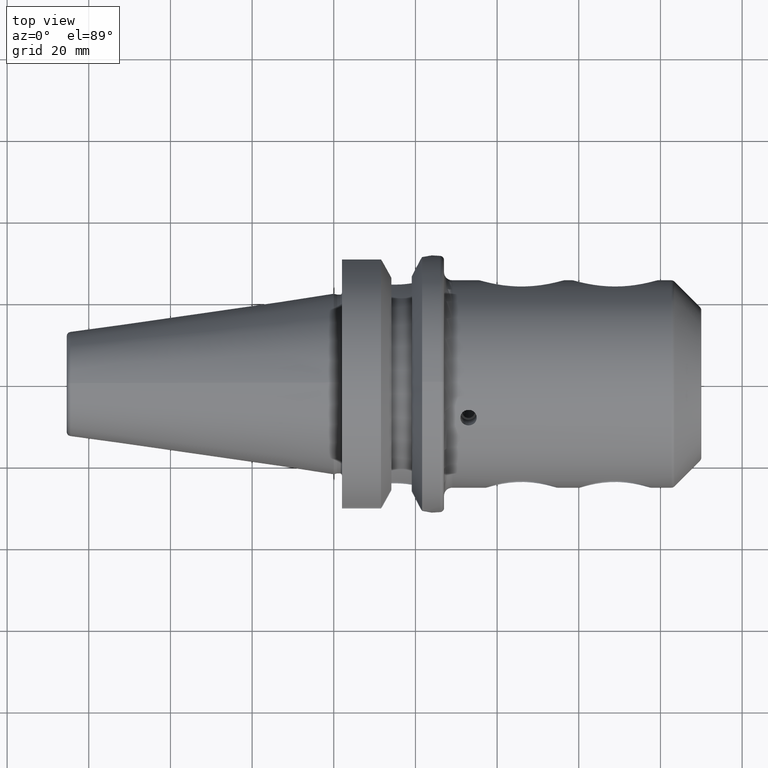
[diagram: clean part render]
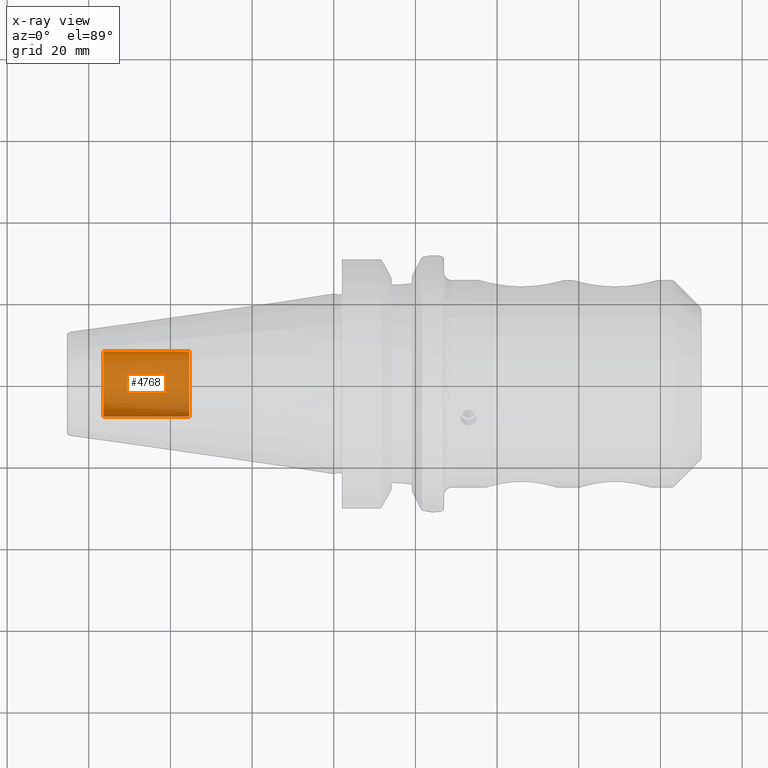
[diagram: x-ray — body ghosted, one internal face saturated and labeled with its STEP entity id]
A machine part, top view, then the same camera in x-ray: the body is ghosted and one INTERNAL B-rep face — a face not visible from any outside direction — is saturated and labeled: STEP entity #4768.
In plain terms, the highlighted cylindrical surface (edge-blend (fillet) strip) has radius 8 mm, axis along (-1, 0, 0).
Its self-contained STEP definition (entity closure, byte-faithful):
#4703=CARTESIAN_POINT('',(-5.64E1,0.E0,0.E0));
#4704=DIRECTION('',(1.E0,0.E0,0.E0));
#4705=DIRECTION('',(0.E0,-1.E0,0.E0));
#4706=AXIS2_PLACEMENT_3D('',#4703,#4704,#4705);
#4713=DIRECTION('',(1.E0,0.E0,0.E0));
#4714=VECTOR('',#4713,2.1E1);
#4715=CARTESIAN_POINT('',(-5.64E1,-8.E0,0.E0));
#4716=LINE('',#4715,#4714);
#4717=DIRECTION('',(1.E0,0.E0,0.E0));
#4718=VECTOR('',#4717,2.1E1);
#4719=CARTESIAN_POINT('',(-5.64E1,8.E0,0.E0));
#4720=LINE('',#4719,#4718);
#4726=CARTESIAN_POINT('',(-3.54E1,0.E0,0.E0));
#4727=DIRECTION('',(-1.E0,0.E0,0.E0));
#4728=DIRECTION('',(0.E0,1.E0,0.E0));
#4729=AXIS2_PLACEMENT_3D('',#4726,#4727,#4728);
#4741=CARTESIAN_POINT('',(-3.54E1,8.E0,0.E0));
#4742=CARTESIAN_POINT('',(-3.54E1,-8.E0,0.E0));
#4743=VERTEX_POINT('',#4741);
#4744=VERTEX_POINT('',#4742);
#4745=CARTESIAN_POINT('',(-5.64E1,8.E0,0.E0));
#4746=CARTESIAN_POINT('',(-5.64E1,-8.E0,0.E0));
#4747=VERTEX_POINT('',#4745);
#4748=VERTEX_POINT('',#4746);
#4753=CARTESIAN_POINT('',(-1.373367445015E1,0.E0,0.E0));
#4754=DIRECTION('',(-1.E0,0.E0,0.E0));
#4755=DIRECTION('',(0.E0,1.E0,0.E0));
#4756=AXIS2_PLACEMENT_3D('',#4753,#4754,#4755);
#4757=CYLINDRICAL_SURFACE('',#4756,8.E0);
#4759=ORIENTED_EDGE('',*,*,#4758,.T.);
#4761=ORIENTED_EDGE('',*,*,#4760,.T.);
#4763=ORIENTED_EDGE('',*,*,#4762,.T.);
#4765=ORIENTED_EDGE('',*,*,#4764,.F.);
#4766=EDGE_LOOP('',(#4759,#4761,#4763,#4765));
#4767=FACE_OUTER_BOUND('',#4766,.F.);
#4768=ADVANCED_FACE('',(#4767),#4757,.F.);
#4707=CIRCLE('',#4706,8.E0);
#4730=CIRCLE('',#4729,8.E0);
#4758=EDGE_CURVE('',#4748,#4747,#4707,.T.);
#4760=EDGE_CURVE('',#4747,#4743,#4720,.T.);
#4762=EDGE_CURVE('',#4743,#4744,#4730,.T.);
#4764=EDGE_CURVE('',#4748,#4744,#4716,.T.);